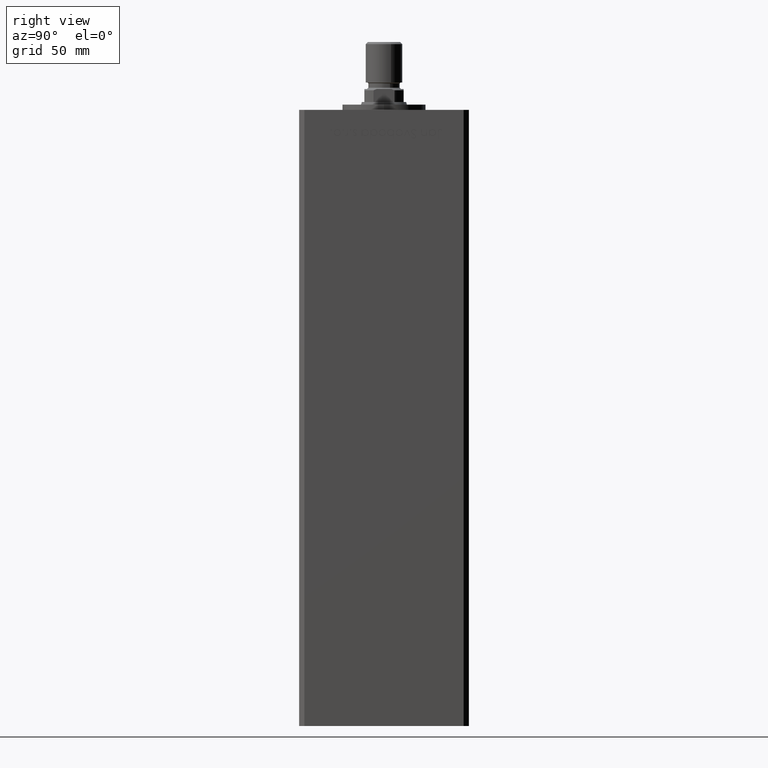
[diagram: clean part render]
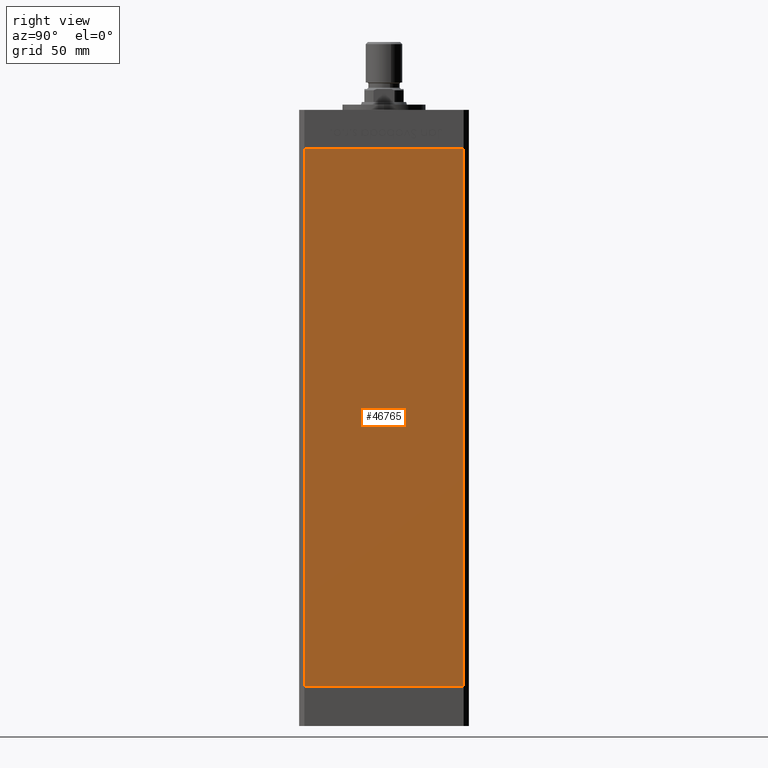
[diagram: same view with one face highlighted and labeled with its STEP entity id]
A machine part, right view. The second image highlights one B-rep face of the part: STEP entity #46765.
In plain terms, the highlighted planar face has unit normal (1, -0, 0).
Its self-contained STEP definition (entity closure, byte-faithful):
#37 = VERTEX_POINT ( 'NONE', #48605 ) ;
#5502 = VECTOR ( 'NONE', #47486, 1000.000000000000000 ) ;
#5860 = ORIENTED_EDGE ( 'NONE', *, *, #36858, .F. ) ;
#6735 = LINE ( 'NONE', #51737, #5502 ) ;
#9924 = ORIENTED_EDGE ( 'NONE', *, *, #12964, .T. ) ;
#10186 = DIRECTION ( 'NONE',  ( -2.275047181608927644E-16, -1.000000000000000000, 0.000000000000000000 ) ) ;
#10515 = CARTESIAN_POINT ( 'NONE',  ( 37.50000000000000711, 30.50000000000000000, 206.0000000000000000 ) ) ;
#12964 = EDGE_CURVE ( 'NONE', #37, #31954, #46771, .T. ) ;
#15685 = FACE_OUTER_BOUND ( 'NONE', #50427, .T. ) ;
#17508 = VECTOR ( 'NONE', #38036, 1000.000000000000000 ) ;
#18026 = DIRECTION ( 'NONE',  ( -0.000000000000000000, -0.000000000000000000, -1.000000000000000000 ) ) ;
#19958 = VERTEX_POINT ( 'NONE', #40242 ) ;
#21535 = ORIENTED_EDGE ( 'NONE', *, *, #33994, .F. ) ;
#23367 = CARTESIAN_POINT ( 'NONE',  ( 37.50000000000000711, 30.50000000000000000, 206.0000000000000000 ) ) ;
#26157 = CARTESIAN_POINT ( 'NONE',  ( 37.49999999999999289, -30.50000000000000000, 206.0000000000000000 ) ) ;
#26962 = VECTOR ( 'NONE', #18026, 1000.000000000000000 ) ;
#27332 = PLANE ( 'NONE',  #49178 ) ;
#31814 = DIRECTION ( 'NONE',  ( 1.000000000000000000, -2.275047181608928137E-16, 0.000000000000000000 ) ) ;
#31954 = VERTEX_POINT ( 'NONE', #26157 ) ;
#33118 = LINE ( 'NONE', #42093, #26962 ) ;
#33175 = ORIENTED_EDGE ( 'NONE', *, *, #39227, .T. ) ;
#33994 = EDGE_CURVE ( 'NONE', #46297, #19958, #46967, .T. ) ;
#36858 = EDGE_CURVE ( 'NONE', #37, #46297, #6735, .T. ) ;
#38036 = DIRECTION ( 'NONE',  ( -2.275047181608927644E-16, -1.000000000000000000, 0.000000000000000000 ) ) ;
#39227 = EDGE_CURVE ( 'NONE', #31954, #19958, #33118, .T. ) ;
#40242 = CARTESIAN_POINT ( 'NONE',  ( 37.49999999999999289, -30.50000000000000000, 0.000000000000000000 ) ) ;
#42093 = CARTESIAN_POINT ( 'NONE',  ( 37.49999999999999289, -30.50000000000000000, 206.0000000000000000 ) ) ;
#42458 = VECTOR ( 'NONE', #10186, 1000.000000000000000 ) ;
#44567 = CARTESIAN_POINT ( 'NONE',  ( 37.50000000000000711, 30.50000000000000000, 0.000000000000000000 ) ) ;
#46297 = VERTEX_POINT ( 'NONE', #44567 ) ;
#46442 = CARTESIAN_POINT ( 'NONE',  ( 37.50000000000000711, 30.50000000000000000, 0.000000000000000000 ) ) ;
#46765 = ADVANCED_FACE ( 'NONE', ( #15685 ), #27332, .T. ) ;
#46771 = LINE ( 'NONE', #10515, #17508 ) ;
#46967 = LINE ( 'NONE', #46442, #42458 ) ;
#47486 = DIRECTION ( 'NONE',  ( -0.000000000000000000, -0.000000000000000000, -1.000000000000000000 ) ) ;
#47956 = DIRECTION ( 'NONE',  ( 2.275047181608928137E-16, 1.000000000000000000, 0.000000000000000000 ) ) ;
#48605 = CARTESIAN_POINT ( 'NONE',  ( 37.50000000000000711, 30.50000000000000000, 206.0000000000000000 ) ) ;
#49178 = AXIS2_PLACEMENT_3D ( 'NONE', #23367, #31814, #47956 ) ;
#50427 = EDGE_LOOP ( 'NONE', ( #21535, #5860, #9924, #33175 ) ) ;
#51737 = CARTESIAN_POINT ( 'NONE',  ( 37.50000000000000711, 30.50000000000000000, 206.0000000000000000 ) ) ;